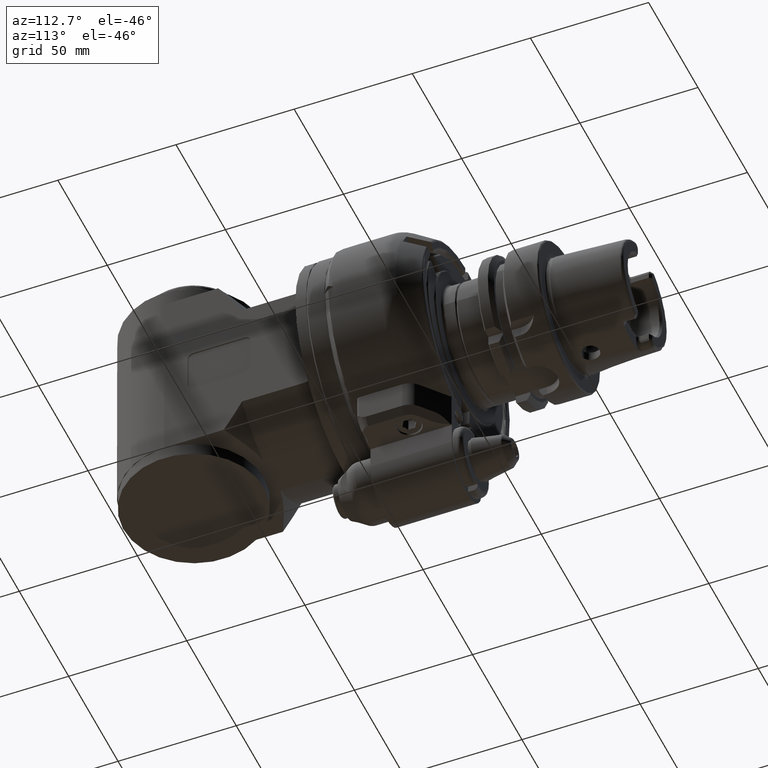
[diagram: clean part render]
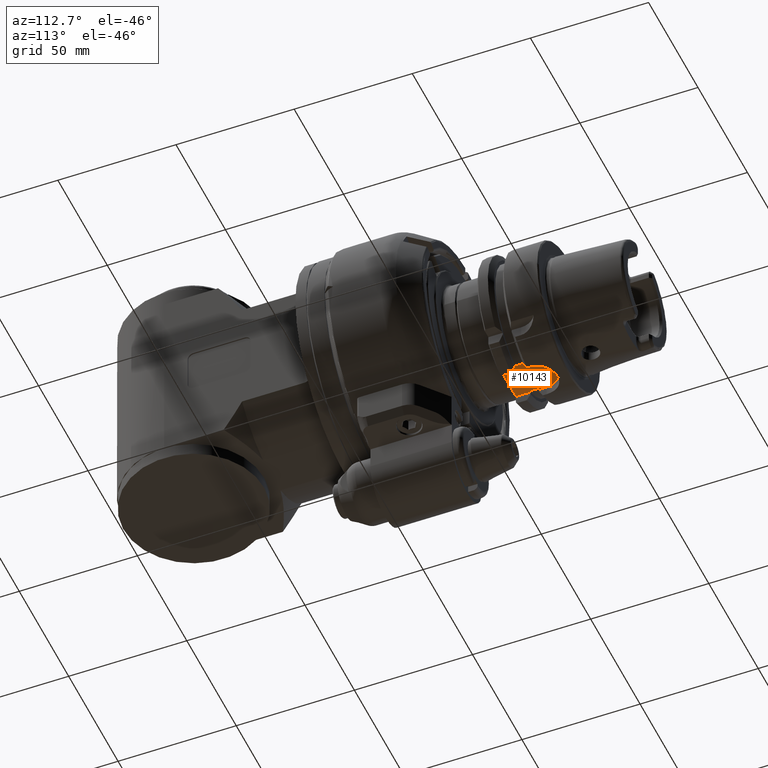
[diagram: same view with one face highlighted and labeled with its STEP entity id]
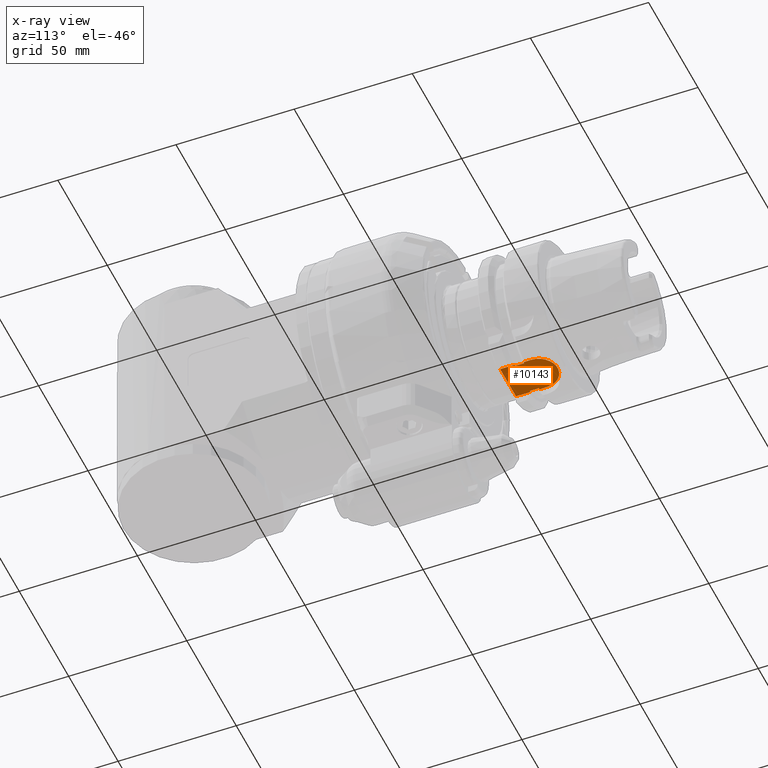
[diagram: x-ray of the same camera — body ghosted, the highlighted face saturated]
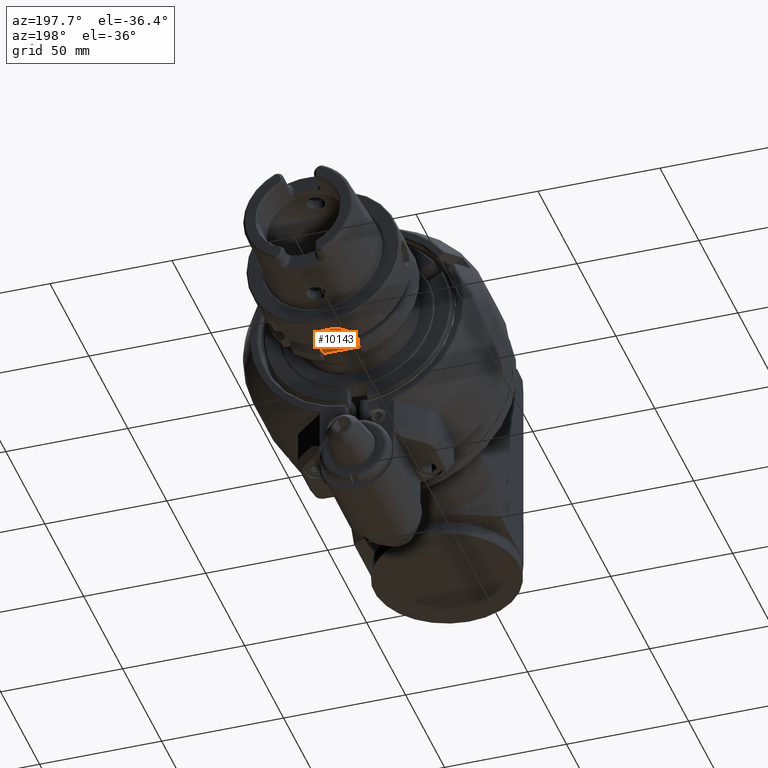
[diagram: same view with one face highlighted and labeled with its STEP entity id]
A machine part, auxiliary view. The second image highlights one B-rep face of the part: STEP entity #10143.
The next image is the same camera in x-ray: the body ghosted, the highlighted face saturated — about 0% of this face is hidden behind the body in this view.
A second angle (auxiliary view) of the same face is appended — the face is thin or edge-on in the first view.
In plain terms, the highlighted planar face has unit normal (0, 0, 1).
Its self-contained STEP definition (entity closure, byte-faithful):
#738=PLANE('',#11291);
#1273=FACE_OUTER_BOUND('',#1943,.T.);
#1943=EDGE_LOOP('',(#8911,#8912,#8913,#8914,#8915,#8916,#8917,#8918,#8919,
#8920,#8921,#8922));
#2626=LINE('',#19702,#3324);
#2636=LINE('',#19777,#3334);
#2639=LINE('',#19787,#3337);
#2640=LINE('',#19791,#3338);
#2641=LINE('',#19793,#3339);
#2642=LINE('',#19794,#3340);
#2643=LINE('',#19795,#3341);
#2644=LINE('',#19797,#3342);
#2645=LINE('',#19799,#3343);
#2646=LINE('',#19801,#3344);
#2647=LINE('',#19802,#3345);
#3324=VECTOR('',#13995,16.);
#3334=VECTOR('',#14033,0.6515307716505);
#3337=VECTOR('',#14042,3.125);
#3338=VECTOR('',#14045,3.125);
#3339=VECTOR('',#14046,0.6515307716505);
#3340=VECTOR('',#14047,3.75);
#3341=VECTOR('',#14048,6.125);
#3342=VECTOR('',#14049,6.125);
#3343=VECTOR('',#14050,0.6515307716505);
#3344=VECTOR('',#14051,3.75);
#3345=VECTOR('',#14052,0.6515307716505);
#3933=CIRCLE('',#11292,8.);
#4812=VERTEX_POINT('',#19699);
#4813=VERTEX_POINT('',#19701);
#4826=VERTEX_POINT('',#19775);
#4827=VERTEX_POINT('',#19776);
#4830=VERTEX_POINT('',#19785);
#4831=VERTEX_POINT('',#19786);
#4832=VERTEX_POINT('',#19788);
#4833=VERTEX_POINT('',#19790);
#4834=VERTEX_POINT('',#19792);
#4835=VERTEX_POINT('',#19796);
#4836=VERTEX_POINT('',#19798);
#4837=VERTEX_POINT('',#19800);
#6198=EDGE_CURVE('',#4813,#4812,#2626,.T.);
#6219=EDGE_CURVE('',#4826,#4827,#2636,.T.);
#6224=EDGE_CURVE('',#4830,#4831,#2639,.T.);
#6225=EDGE_CURVE('',#4830,#4832,#3933,.T.);
#6226=EDGE_CURVE('',#4833,#4832,#2640,.T.);
#6227=EDGE_CURVE('',#4834,#4833,#2641,.T.);
#6228=EDGE_CURVE('',#4827,#4834,#2642,.T.);
#6229=EDGE_CURVE('',#4813,#4826,#2643,.T.);
#6230=EDGE_CURVE('',#4835,#4812,#2644,.T.);
#6231=EDGE_CURVE('',#4836,#4835,#2645,.T.);
#6232=EDGE_CURVE('',#4837,#4836,#2646,.T.);
#6233=EDGE_CURVE('',#4831,#4837,#2647,.T.);
#8911=ORIENTED_EDGE('',*,*,#6224,.F.);
#8912=ORIENTED_EDGE('',*,*,#6225,.T.);
#8913=ORIENTED_EDGE('',*,*,#6226,.F.);
#8914=ORIENTED_EDGE('',*,*,#6227,.F.);
#8915=ORIENTED_EDGE('',*,*,#6228,.F.);
#8916=ORIENTED_EDGE('',*,*,#6219,.F.);
#8917=ORIENTED_EDGE('',*,*,#6229,.F.);
#8918=ORIENTED_EDGE('',*,*,#6198,.T.);
#8919=ORIENTED_EDGE('',*,*,#6230,.F.);
#8920=ORIENTED_EDGE('',*,*,#6231,.F.);
#8921=ORIENTED_EDGE('',*,*,#6232,.F.);
#8922=ORIENTED_EDGE('',*,*,#6233,.F.);
#10143=ADVANCED_FACE('',(#1273),#738,.F.);
#11291=AXIS2_PLACEMENT_3D('',#19784,#14040,#14041);
#11292=AXIS2_PLACEMENT_3D('',#19789,#14043,#14044);
#13995=DIRECTION('',(-1.,0.,0.));
#14033=DIRECTION('',(-1.,0.,0.));
#14040=DIRECTION('center_axis',(0.,0.,1.));
#14041=DIRECTION('ref_axis',(0.,1.,0.));
#14042=DIRECTION('',(0.,-1.,0.));
#14043=DIRECTION('center_axis',(0.,0.,-1.));
#14044=DIRECTION('ref_axis',(0.,1.,0.));
#14045=DIRECTION('',(0.,1.,0.));
#14046=DIRECTION('',(1.,0.,0.));
#14047=DIRECTION('',(0.,1.,0.));
#14048=DIRECTION('',(0.,1.,0.));
#14049=DIRECTION('',(0.,-1.,0.));
#14050=DIRECTION('',(-1.,0.,0.));
#14051=DIRECTION('',(0.,-1.,0.));
#14052=DIRECTION('',(1.,0.,0.));
#19699=CARTESIAN_POINT('',(-8.,57.,-26.5));
#19701=CARTESIAN_POINT('',(8.,57.,-26.5));
#19702=CARTESIAN_POINT('',(8.,57.,-26.5));
#19775=CARTESIAN_POINT('',(8.,63.125,-26.5));
#19776=CARTESIAN_POINT('',(7.34846922835,63.125,-26.5));
#19777=CARTESIAN_POINT('',(8.,63.125,-26.5));
#19784=CARTESIAN_POINT('Origin',(0.,32.005,-26.5));
#19785=CARTESIAN_POINT('',(-8.,70.,-26.5));
#19786=CARTESIAN_POINT('',(-8.,66.875,-26.5));
#19787=CARTESIAN_POINT('',(-8.,70.,-26.5));
#19788=CARTESIAN_POINT('',(8.,70.,-26.5));
#19789=CARTESIAN_POINT('Origin',(0.,70.,-26.5));
#19790=CARTESIAN_POINT('',(8.,66.875,-26.5));
#19791=CARTESIAN_POINT('',(8.,66.875,-26.5));
#19792=CARTESIAN_POINT('',(7.34846922835,66.875,-26.5));
#19793=CARTESIAN_POINT('',(7.34846922835,66.875,-26.5));
#19794=CARTESIAN_POINT('',(7.34846922835,63.125,-26.5));
#19795=CARTESIAN_POINT('',(8.,57.,-26.5));
#19796=CARTESIAN_POINT('',(-8.,63.125,-26.5));
#19797=CARTESIAN_POINT('',(-8.,63.125,-26.5));
#19798=CARTESIAN_POINT('',(-7.34846922835,63.125,-26.5));
#19799=CARTESIAN_POINT('',(-7.34846922835,63.125,-26.5));
#19800=CARTESIAN_POINT('',(-7.34846922835,66.875,-26.5));
#19801=CARTESIAN_POINT('',(-7.34846922835,66.875,-26.5));
#19802=CARTESIAN_POINT('',(-8.,66.875,-26.5));